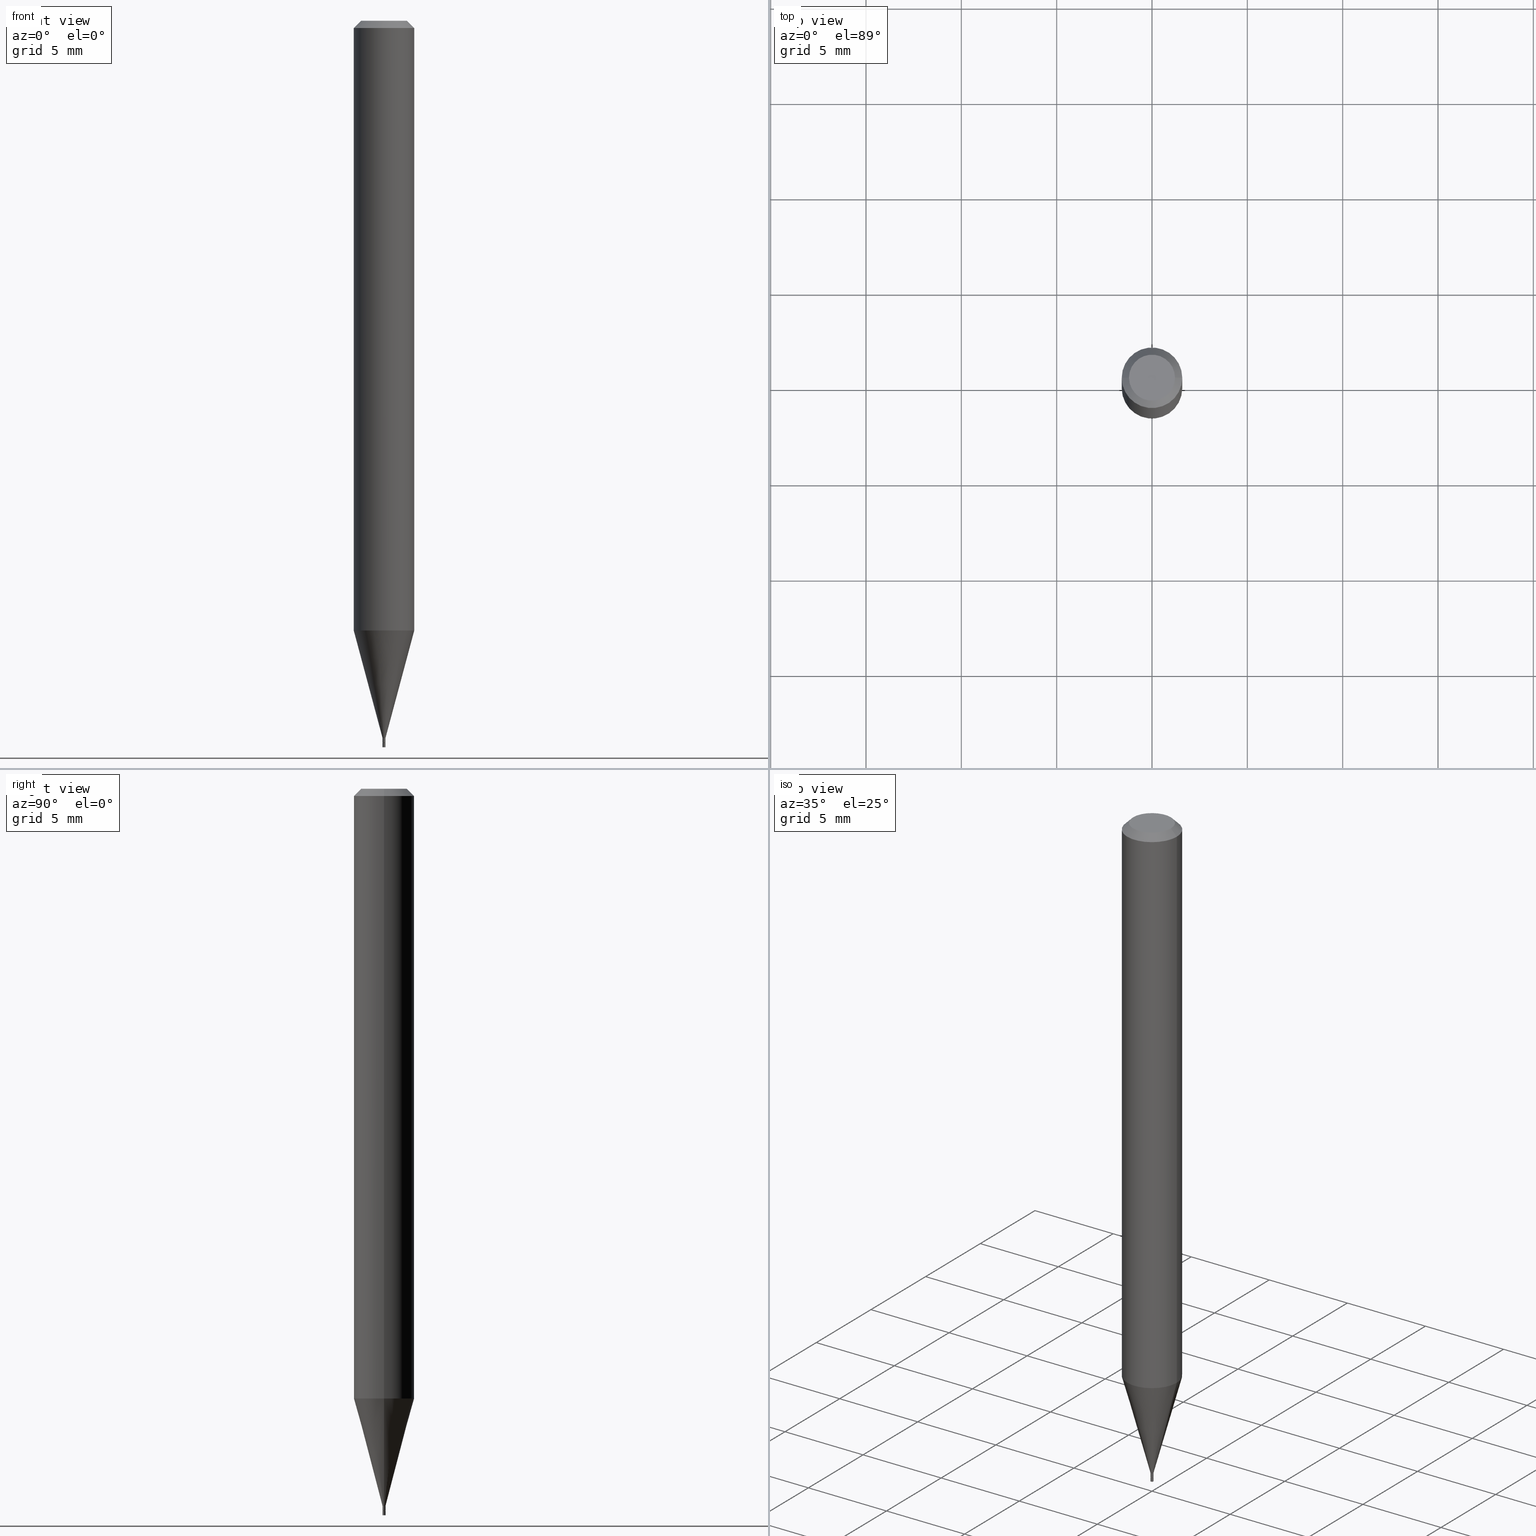
[diagram: canonical four-view strip — front | top / right | iso, engineering-drawing reading convention]
A machine part, canonical four-view strip (front | top / right | iso — engineering-drawing reading convention). The complete STEP part file that produces these views, byte-faithful:
ISO-10303-21;
HEADER;
FILE_DESCRIPTION (( 'STEP AP203' ),
    '1' );
FILE_NAME ('02202.STEP',
    '2024-03-18T19:54:11',
    ( '' ),
    ( '' ),
    'SwSTEP 2.0',
    'SolidWorks 2023',
    '' );
FILE_SCHEMA (( 'CONFIG_CONTROL_DESIGN' ));
ENDSEC;

DATA;
#1 = CONICAL_SURFACE ( 'NONE', #256, 0.002500000000000000052, 0.7853981633974723708 ) ;
#2 = ORIENTED_EDGE ( 'NONE', *, *, #419, .T. ) ;
#3 = DIRECTION ( 'NONE',  ( 1.000000000000000000, -6.982962677686138915E-15, 0.000000000000000000 ) ) ;
#4 = ORIENTED_EDGE ( 'NONE', *, *, #341, .T. ) ;
#5 = CARTESIAN_POINT ( 'NONE',  ( 3.621739301960187407E-29, -5.170883862826698675E-15, -1.481000000000000094 ) ) ;
#6 = ORIENTED_EDGE ( 'NONE', *, *, #294, .T. ) ;
#7 = AXIS2_PLACEMENT_3D ( 'NONE', #198, #458, #343 ) ;
#8 = CONICAL_SURFACE ( 'NONE', #402, 0.06250000000000000000, 0.7853981633973285970 ) ;
#9 = DIRECTION ( 'NONE',  ( 1.000000000000000000, -6.982962677686267499E-15, 5.108144071313017768E-29 ) ) ;
#10 = DIRECTION ( 'NONE',  ( -2.445468806185136597E-29, 3.491481338843145583E-15, 1.000000000000000000 ) ) ;
#11 = DIRECTION ( 'NONE',  ( -2.445468806185136597E-29, 3.491481338843145583E-15, 1.000000000000000000 ) ) ;
#12 = PLANE ( 'NONE',  #433 ) ;
#13 = CARTESIAN_POINT ( 'NONE',  ( 3.644971255618946712E-29, -5.204052935545708820E-15, -1.490500000000000158 ) ) ;
#14 = DIRECTION ( 'NONE',  ( -2.445468806185136597E-29, 3.491481338843145583E-15, 1.000000000000000000 ) ) ;
#15 = ADVANCED_FACE ( 'NONE', ( #465 ), #297, .T. ) ;
#16 = FACE_OUTER_BOUND ( 'NONE', #169, .T. ) ;
#17 = LINE ( 'NONE', #118, #275 ) ;
#18 = ORIENTED_EDGE ( 'NONE', *, *, #341, .F. ) ;
#19 = ORIENTED_EDGE ( 'NONE', *, *, #141, .F. ) ;
#20 = DIRECTION ( 'NONE',  ( 1.000000000000000000, -6.982962677686188613E-15, 0.000000000000000000 ) ) ;
#21 = AXIS2_PLACEMENT_3D ( 'NONE', #5, #252, #45 ) ;
#22 = AXIS2_PLACEMENT_3D ( 'NONE', #41, #11, #247 ) ;
#23 = DIRECTION ( 'NONE',  ( 1.000000000000000000, -6.982962677686266711E-15, 4.876176775795935232E-29 ) ) ;
#24 = DIRECTION ( 'NONE',  ( -0.7071067811865645591, 7.493145998870415691E-15, 0.7071067811865304753 ) ) ;
#25 = DIRECTION ( 'NONE',  ( 1.000000000000000000, -6.982962677686266711E-15, 4.876176775795935793E-29 ) ) ;
#26 = PERSON_AND_ORGANIZATION ( #405, #314 ) ;
#27 = APPROVAL ( #354, 'UNSPECIFIED' ) ;
#28 = DIRECTION ( 'NONE',  ( -2.445468806185136597E-29, 3.491481338843145583E-15, 1.000000000000000000 ) ) ;
#29 = APPLICATION_PROTOCOL_DEFINITION ( 'international standard', 'config_control_design', 1994, #63 ) ;
#30 = CONICAL_SURFACE ( 'NONE', #82, 0.06250000000000000000, 0.7853981633973285970 ) ;
#31 = COORDINATED_UNIVERSAL_TIME_OFFSET ( 5, 0, .BEHIND. ) ;
#32 = VERTEX_POINT ( 'NONE', #365 ) ;
#33 = EDGE_LOOP ( 'NONE', ( #58, #461, #106, #18 ) ) ;
#34 = CARTESIAN_POINT ( 'NONE',  ( 0.000000000000000000, 0.000000000000000000, 0.000000000000000000 ) ) ;
#35 = ORIENTED_EDGE ( 'NONE', *, *, #105, .F. ) ;
#36 = APPROVAL_ROLE ( '' ) ;
#37 = ORIENTED_EDGE ( 'NONE', *, *, #450, .F. ) ;
#38 = PRODUCT_RELATED_PRODUCT_CATEGORY ( 'detail', '', ( #204 ) ) ;
#39 = DIRECTION ( 'NONE',  ( -2.445468806185136597E-29, 3.491481338843145583E-15, 1.000000000000000000 ) ) ;
#40 = ORIENTED_EDGE ( 'NONE', *, *, #117, .F. ) ;
#41 = CARTESIAN_POINT ( 'NONE',  ( 3.621739301960187407E-29, -5.170883862826698675E-15, -1.481000000000000094 ) ) ;
#42 = AXIS2_PLACEMENT_3D ( 'NONE', #122, #451, #235 ) ;
#43 = CARTESIAN_POINT ( 'NONE',  ( 3.668203209277705088E-31, -5.237222008264718399E-17, -0.01499999999999999944 ) ) ;
#44 = CARTESIAN_POINT ( 'NONE',  ( 3.668203209277704895E-29, -5.237222008264718177E-15, -1.500000000000000222 ) ) ;
#45 = DIRECTION ( 'NONE',  ( 1.000000000000000000, -6.982962677686191769E-15, 0.000000000000000000 ) ) ;
#46 = DIRECTION ( 'NONE',  ( 0.7071067811865645591, -2.468850131082435343E-15, 0.7071067811865304753 ) ) ;
#47 = DIRECTION ( 'NONE',  ( 1.000000000000000000, -6.982962677686188613E-15, 0.000000000000000000 ) ) ;
#48 = DIRECTION ( 'NONE',  ( 1.000000000000000000, -6.982962677686265922E-15, 4.876176775795935793E-29 ) ) ;
#49 = DIRECTION ( 'NONE',  ( 1.000000000000000000, -6.982962677686266711E-15, 4.876176775795935793E-29 ) ) ;
#50 = EDGE_LOOP ( 'NONE', ( #35, #285, #210, #230 ) ) ;
#51 = DIRECTION ( 'NONE',  ( 1.000000000000000000, -6.982962677686266711E-15, 4.876176775795935232E-29 ) ) ;
#52 = CIRCLE ( 'NONE', #369, 0.06250000000000000000 ) ;
#53 = VECTOR ( 'NONE', #399, 39.37007874015748143 ) ;
#54 = APPLICATION_CONTEXT ( 'configuration controlled 3d designs of mechanical parts and assemblies' ) ;
#55 = COORDINATED_UNIVERSAL_TIME_OFFSET ( 5, 0, .BEHIND. ) ;
#56 = ORIENTED_EDGE ( 'NONE', *, *, #246, .F. ) ;
#57 = CARTESIAN_POINT ( 'NONE',  ( 0.000000000000000000, 0.000000000000000000, 0.000000000000000000 ) ) ;
#58 = ORIENTED_EDGE ( 'NONE', *, *, #289, .T. ) ;
#59 = CYLINDRICAL_SURFACE ( 'NONE', #337, 0.003000000000000000062 ) ;
#60 = DATE_AND_TIME ( #171, #91 ) ;
#61 = ORIENTED_EDGE ( 'NONE', *, *, #323, .F. ) ;
#62 = EDGE_LOOP ( 'NONE', ( #326, #164 ) ) ;
#63 = APPLICATION_CONTEXT ( 'configuration controlled 3d designs of mechanical parts and assemblies' ) ;
#64 = COORDINATED_UNIVERSAL_TIME_OFFSET ( 5, 0, .BEHIND. ) ;
#65 = VERTEX_POINT ( 'NONE', #120 ) ;
#66 = AXIS2_PLACEMENT_3D ( 'NONE', #333, #10, #398 ) ;
#67 = CIRCLE ( 'NONE', #93, 0.04749999999999999362 ) ;
#68 = CC_DESIGN_PERSON_AND_ORGANIZATION_ASSIGNMENT ( #455, #286, ( #338 ) ) ;
#69 = APPROVAL_PERSON_ORGANIZATION ( #205, #27, #36 ) ;
#70 = FACE_OUTER_BOUND ( 'NONE', #101, .T. ) ;
#71 = ORIENTED_EDGE ( 'NONE', *, *, #289, .F. ) ;
#72 = DESIGN_CONTEXT ( 'detailed design', #54, 'design' ) ;
#73 = EDGE_CURVE ( 'NONE', #108, #348, #449, .T. ) ;
#74 = FACE_OUTER_BOUND ( 'NONE', #237, .T. ) ;
#75 = DIRECTION ( 'NONE',  ( 1.000000000000000000, -6.982962677686266711E-15, 0.000000000000000000 ) ) ;
#76 = VECTOR ( 'NONE', #219, 39.37007874015748143 ) ;
#77 = FACE_OUTER_BOUND ( 'NONE', #178, .T. ) ;
#78 = PLANE ( 'NONE',  #312 ) ;
#79 = CARTESIAN_POINT ( 'NONE',  ( 3.646193990022038953E-29, -5.205798676215130324E-15, -1.491000000000000103 ) ) ;
#80 = PRODUCT_DEFINITION ( 'UNKNOWN', '', #338, #72 ) ;
#81 = ADVANCED_FACE ( 'NONE', ( #16 ), #12, .F. ) ;
#82 = AXIS2_PLACEMENT_3D ( 'NONE', #366, #444, #290 ) ;
#83 = DIRECTION ( 'NONE',  ( -0.2588190451025213501, 5.211531920934551042E-15, 0.9659258262890682012 ) ) ;
#84 = SECURITY_CLASSIFICATION ( '', '', #392 ) ;
#85 = VERTEX_POINT ( 'NONE', #194 ) ;
#86 = CARTESIAN_POINT ( 'NONE',  ( 3.576687321579069994E-29, -5.368277968210015545E-15, -1.500000000000000222 ) ) ;
#87 = ADVANCED_FACE ( 'NONE', ( #132 ), #257, .T. ) ;
#88 =( NAMED_UNIT ( * ) PLANE_ANGLE_UNIT ( ) SI_UNIT ( $, .RADIAN. ) );
#89 = ADVANCED_FACE ( 'NONE', ( #267 ), #425, .T. ) ;
#90 = ORIENTED_EDGE ( 'NONE', *, *, #450, .T. ) ;
#91 = LOCAL_TIME ( 15, 54, 11.00000000000000000, #31 ) ;
#92 = AXIS2_PLACEMENT_3D ( 'NONE', #411, #349, #51 ) ;
#93 = AXIS2_PLACEMENT_3D ( 'NONE', #181, #39, #9 ) ;
#94 = ORIENTED_EDGE ( 'NONE', *, *, #302, .F. ) ;
#95 = EDGE_CURVE ( 'NONE', #420, #244, #165, .T. ) ;
#96 = CALENDAR_DATE ( 2024, 18, 3 ) ;
#97 = ORIENTED_EDGE ( 'NONE', *, *, #383, .F. ) ;
#98 = CARTESIAN_POINT ( 'NONE',  ( -8.783475466943041190E-44, 1.254047510459085029E-29, 3.591734821858152800E-15 ) ) ;
#99 = SHAPE_DEFINITION_REPRESENTATION ( #429, #331 ) ;
#100 = ADVANCED_FACE ( 'NONE', ( #422 ), #59, .T. ) ;
#101 = EDGE_LOOP ( 'NONE', ( #356, #61, #414, #357 ) ) ;
#102 = ORIENTED_EDGE ( 'NONE', *, *, #268, .F. ) ;
#103 = DATE_TIME_ROLE ( 'creation_date' ) ;
#104 = ORIENTED_EDGE ( 'NONE', *, *, #393, .F. ) ;
#105 = EDGE_CURVE ( 'NONE', #436, #322, #362, .T. ) ;
#106 = ORIENTED_EDGE ( 'NONE', *, *, #197, .F. ) ;
#107 = DIRECTION ( 'NONE',  ( 1.000000000000000000, -6.982962677686332186E-15, 0.000000000000000000 ) ) ;
#108 = VERTEX_POINT ( 'NONE', #462 ) ;
#109 = AXIS2_PLACEMENT_3D ( 'NONE', #238, #454, #270 ) ;
#110 = LOCAL_TIME ( 15, 54, 11.00000000000000000, #64 ) ;
#111 = DIRECTION ( 'NONE',  ( -2.445468806185136597E-29, 3.491481338843145583E-15, 1.000000000000000000 ) ) ;
#112 = DIRECTION ( 'NONE',  ( 1.000000000000000000, -6.982962677686138915E-15, 0.000000000000000000 ) ) ;
#113 = EDGE_CURVE ( 'NONE', #276, #287, #415, .T. ) ;
#114 = DIRECTION ( 'NONE',  ( -2.445468806185136597E-29, 3.491481338843145583E-15, 1.000000000000000000 ) ) ;
#115 = CIRCLE ( 'NONE', #379, 0.003000000000000000062 ) ;
#116 = CARTESIAN_POINT ( 'NONE',  ( -0.06250000000000000000, -1.779884855534934425E-15, -0.01499999999999999944 ) ) ;
#117 = EDGE_CURVE ( 'NONE', #85, #32, #382, .T. ) ;
#118 = CARTESIAN_POINT ( 'NONE',  ( -0.003000000000000000062, 2.131628207280300602E-17, -1.475680527076471750E-31 ) ) ;
#119 = CC_DESIGN_PERSON_AND_ORGANIZATION_ASSIGNMENT ( #460, #466, ( #84 ) ) ;
#120 = CARTESIAN_POINT ( 'NONE',  ( 0.002999999999999921566, -5.191832750859756717E-15, -1.481000000000000094 ) ) ;
#121 = CC_DESIGN_APPROVAL ( #136, ( #84 ) ) ;
#122 = CARTESIAN_POINT ( 'NONE',  ( 3.668203209277705088E-31, -5.237222008264718399E-17, -0.01499999999999999944 ) ) ;
#123 = CARTESIAN_POINT ( 'NONE',  ( 3.078705778896227940E-29, -4.395575910687346608E-15, -1.258942976949652293 ) ) ;
#124 = DIRECTION ( 'NONE',  ( -2.445468806185136597E-29, 3.491481338843145583E-15, 1.000000000000000000 ) ) ;
#125 = ORIENTED_EDGE ( 'NONE', *, *, #367, .F. ) ;
#126 = FACE_OUTER_BOUND ( 'NONE', #269, .T. ) ;
#127 = AXIS2_PLACEMENT_3D ( 'NONE', #139, #432, #220 ) ;
#128 = VECTOR ( 'NONE', #83, 39.37007874015747433 ) ;
#129 = ADVANCED_FACE ( 'NONE', ( #377 ), #206, .F. ) ;
#130 = AXIS2_PLACEMENT_3D ( 'NONE', #57, #280, #242 ) ;
#131 = DIRECTION ( 'NONE',  ( -2.445468806185136597E-29, 3.491481338843145583E-15, 1.000000000000000000 ) ) ;
#132 = FACE_OUTER_BOUND ( 'NONE', #435, .T. ) ;
#133 = CALENDAR_DATE ( 2024, 18, 3 ) ;
#134 = ORIENTED_EDGE ( 'NONE', *, *, #407, .F. ) ;
#135 = DIRECTION ( 'NONE',  ( 1.000000000000000000, -6.982962677686262766E-15, 0.000000000000000000 ) ) ;
#136 = APPROVAL ( #236, 'UNSPECIFIED' ) ;
#137 = APPROVAL_DATE_TIME ( #175, #27 ) ;
#138 = ORIENTED_EDGE ( 'NONE', *, *, #117, .T. ) ;
#139 = CARTESIAN_POINT ( 'NONE',  ( 3.621739301960187407E-29, -5.170883862826698675E-15, -1.481000000000000094 ) ) ;
#140 = APPROVAL_ROLE ( '' ) ;
#141 = EDGE_CURVE ( 'NONE', #287, #209, #263, .T. ) ;
#142 = EDGE_LOOP ( 'NONE', ( #180, #196, #71, #56 ) ) ;
#143 = CARTESIAN_POINT ( 'NONE',  ( -0.06250000000000000000, -3.951486700837283992E-15, -1.258942976949652293 ) ) ;
#144 = ORIENTED_EDGE ( 'NONE', *, *, #246, .T. ) ;
#145 = DIRECTION ( 'NONE',  ( 2.438088387897960049E-29, -3.491481338843145188E-15, -1.000000000000000000 ) ) ;
#146 = VECTOR ( 'NONE', #24, 39.37007874015748143 ) ;
#147 = CC_DESIGN_APPROVAL ( #303, ( #338 ) ) ;
#148 = CARTESIAN_POINT ( 'NONE',  ( 3.668203209277705088E-31, -5.237222008264718399E-17, -0.01499999999999999944 ) ) ;
#149 = CARTESIAN_POINT ( 'NONE',  ( 0.06250000000000000000, -4.888073874380388472E-16, -0.01499999999999999944 ) ) ;
#150 = CARTESIAN_POINT ( 'NONE',  ( -0.04749999999999999362, 3.578768372314273615E-16, 3.591734821858150433E-15 ) ) ;
#151 = CARTESIAN_POINT ( 'NONE',  ( 0.000000000000000000, 0.000000000000000000, 0.000000000000000000 ) ) ;
#152 = FACE_OUTER_BOUND ( 'NONE', #328, .T. ) ;
#153 = CARTESIAN_POINT ( 'NONE',  ( -0.003000000000000000062, -5.200194060167121620E-15, -1.500000000000000222 ) ) ;
#154 = MANIFOLD_SOLID_BREP ( 'Body-Move/Copy2[1]', #182 ) ;
#155 = ORIENTED_EDGE ( 'NONE', *, *, #383, .T. ) ;
#156 = MANIFOLD_SOLID_BREP ( 'Body-Move/Copy2[2]', #298 ) ;
#157 = CONICAL_SURFACE ( 'NONE', #409, 0.002500000000000000052, 0.7853981633974723708 ) ;
#158 = CARTESIAN_POINT ( 'NONE',  ( 0.04749999999999999362, -4.035134999187516007E-16, 3.591734821858155166E-15 ) ) ;
#159 = CIRCLE ( 'NONE', #218, 0.003000000000000000062 ) ;
#160 = FACE_OUTER_BOUND ( 'NONE', #62, .T. ) ;
#161 = DIRECTION ( 'NONE',  ( 1.000000000000000000, -6.982962677686266711E-15, 4.876176775795935793E-29 ) ) ;
#162 = DIRECTION ( 'NONE',  ( 1.000000000000000000, -6.982962677686267499E-15, 5.108144071313017768E-29 ) ) ;
#163 = APPLICATION_PROTOCOL_DEFINITION ( 'international standard', 'config_control_design', 1994, #54 ) ;
#164 = ORIENTED_EDGE ( 'NONE', *, *, #232, .F. ) ;
#165 = LINE ( 'NONE', #316, #439 ) ;
#166 = MECHANICAL_CONTEXT ( 'NONE', #63, 'mechanical' ) ;
#167 = CIRCLE ( 'NONE', #22, 0.002999999999999921566 ) ;
#168 = AXIS2_PLACEMENT_3D ( 'NONE', #79, #301, #231 ) ;
#169 = EDGE_LOOP ( 'NONE', ( #353, #104 ) ) ;
#170 = CARTESIAN_POINT ( 'NONE',  ( 0.000000000000000000, 0.000000000000000000, 0.000000000000000000 ) ) ;
#171 = CALENDAR_DATE ( 2024, 18, 3 ) ;
#172 = CARTESIAN_POINT ( 'NONE',  ( -0.06250000000000000000, 4.440892098500626162E-16, -3.074334431409316114E-30 ) ) ;
#173 = PERSON_AND_ORGANIZATION_ROLE ( 'design_owner' ) ;
#174 = EDGE_CURVE ( 'NONE', #276, #176, #273, .T. ) ;
#175 = DATE_AND_TIME ( #320, #110 ) ;
#176 = VERTEX_POINT ( 'NONE', #279 ) ;
#177 = CIRCLE ( 'NONE', #445, 0.003000000000000000062 ) ;
#178 = EDGE_LOOP ( 'NONE', ( #278, #438, #144, #241 ) ) ;
#179 = FACE_OUTER_BOUND ( 'NONE', #50, .T. ) ;
#180 = ORIENTED_EDGE ( 'NONE', *, *, #386, .T. ) ;
#181 = CARTESIAN_POINT ( 'NONE',  ( -8.783475466943041190E-44, 1.254047510459085029E-29, 3.591734821858152800E-15 ) ) ;
#182 = CLOSED_SHELL ( 'NONE', ( #87, #81, #100, #129 ) ) ;
#183 = CARTESIAN_POINT ( 'NONE',  ( 3.646193990022038953E-29, -5.205798676215130324E-15, -1.491000000000000103 ) ) ;
#184 = DIRECTION ( 'NONE',  ( -2.445468806185136597E-29, 3.491481338843145583E-15, 1.000000000000000000 ) ) ;
#185 = ADVANCED_FACE ( 'NONE', ( #160 ), #428, .F. ) ;
#186 = ADVANCED_FACE ( 'NONE', ( #126 ), #157, .T. ) ;
#187 = CC_DESIGN_SECURITY_CLASSIFICATION ( #84, ( #338 ) ) ;
#188 = LINE ( 'NONE', #262, #146 ) ;
#189 = CIRCLE ( 'NONE', #249, 0.002999999999999922867 ) ;
#190 = VECTOR ( 'NONE', #195, 39.37007874015748143 ) ;
#191 = CARTESIAN_POINT ( 'NONE',  ( 3.668203209277704895E-29, -5.237222008264718177E-15, -1.500000000000000222 ) ) ;
#192 = DIRECTION ( 'NONE',  ( -2.445468806185136597E-29, 3.491481338843145583E-15, 1.000000000000000000 ) ) ;
#193 = EDGE_LOOP ( 'NONE', ( #90, #6 ) ) ;
#194 = CARTESIAN_POINT ( 'NONE',  ( 0.003000000000000000062, -5.258170896297777797E-15, -1.500000000000000222 ) ) ;
#195 = DIRECTION ( 'NONE',  ( -0.7071067811864628627, 2.468850131081369986E-15, -0.7071067811866321717 ) ) ;
#196 = ORIENTED_EDGE ( 'NONE', *, *, #372, .T. ) ;
#197 = EDGE_CURVE ( 'NONE', #209, #287, #248, .T. ) ;
#198 = CARTESIAN_POINT ( 'NONE',  ( 2.094888803309526104E-17, 0.002999999999994793724, -1.491000000000000103 ) ) ;
#199 =( CONVERSION_BASED_UNIT ( 'INCH', #413 ) LENGTH_UNIT ( ) NAMED_UNIT ( #380 ) );
#200 = ORIENTED_EDGE ( 'NONE', *, *, #105, .T. ) ;
#201 = ADVANCED_FACE ( 'NONE', ( #288 ), #212, .T. ) ;
#202 = DATE_AND_TIME ( #321, #292 ) ;
#203 = CC_DESIGN_PERSON_AND_ORGANIZATION_ASSIGNMENT ( #207, #239, ( #338 ) ) ;
#204 = PRODUCT ( '02202', '02202', '', ( #166 ) ) ;
#205 = PERSON_AND_ORGANIZATION ( #405, #314 ) ;
#206 = PLANE ( 'NONE',  #7 ) ;
#207 = PERSON_AND_ORGANIZATION ( #405, #314 ) ;
#208 = ADVANCED_FACE ( 'NONE', ( #400 ), #78, .F. ) ;
#209 = VERTEX_POINT ( 'NONE', #149 ) ;
#210 = ORIENTED_EDGE ( 'NONE', *, *, #197, .T. ) ;
#211 = AXIS2_PLACEMENT_3D ( 'NONE', #43, #443, #75 ) ;
#212 = CYLINDRICAL_SURFACE ( 'NONE', #66, 0.06250000000000000000 ) ;
#213 = ORIENTED_EDGE ( 'NONE', *, *, #268, .T. ) ;
#214 = CC_DESIGN_DATE_AND_TIME_ASSIGNMENT ( #277, #283, ( #84 ) ) ;
#215 = DIRECTION ( 'NONE',  ( -2.445468806185136597E-29, 3.491481338843145583E-15, 1.000000000000000000 ) ) ;
#216 = CARTESIAN_POINT ( 'NONE',  ( 3.646193990022038953E-29, -5.205798676215130324E-15, -1.491000000000000103 ) ) ;
#217 = CIRCLE ( 'NONE', #223, 0.002500000000000000052 ) ;
#218 = AXIS2_PLACEMENT_3D ( 'NONE', #191, #336, #408 ) ;
#219 = DIRECTION ( 'NONE',  ( -2.445468806185136877E-29, 3.491481338843145188E-15, 1.000000000000000000 ) ) ;
#220 = DIRECTION ( 'NONE',  ( 1.000000000000000000, -6.982962677686191769E-15, 0.000000000000000000 ) ) ;
#221 = DIRECTION ( 'NONE',  ( -1.000000000000000000, 6.982962677686265922E-15, -4.876176775795935793E-29 ) ) ;
#222 = DIRECTION ( 'NONE',  ( 0.7071067811864628627, -7.319954787622970478E-15, -0.7071067811866321717 ) ) ;
#223 = AXIS2_PLACEMENT_3D ( 'NONE', #216, #114, #112 ) ;
#224 = CARTESIAN_POINT ( 'NONE',  ( 3.646193990022038953E-29, -5.205798676215130324E-15, -1.491000000000000103 ) ) ;
#225 = CIRCLE ( 'NONE', #168, 0.003000000000000000062 ) ;
#226 = FACE_OUTER_BOUND ( 'NONE', #427, .T. ) ;
#227 = VERTEX_POINT ( 'NONE', #295 ) ;
#228 = DIRECTION ( 'NONE',  ( -2.445468806185136877E-29, 3.491481338843145188E-15, 1.000000000000000000 ) ) ;
#229 = CARTESIAN_POINT ( 'NONE',  ( 3.621739301960187407E-29, -5.170883862826698675E-15, -1.481000000000000094 ) ) ;
#230 = ORIENTED_EDGE ( 'NONE', *, *, #463, .F. ) ;
#231 = DIRECTION ( 'NONE',  ( 1.000000000000000000, -6.982962677686332186E-15, 0.000000000000000000 ) ) ;
#232 = EDGE_CURVE ( 'NONE', #348, #108, #217, .T. ) ;
#233 = CC_DESIGN_DATE_AND_TIME_ASSIGNMENT ( #350, #103, ( #80 ) ) ;
#234 = PERSON_AND_ORGANIZATION ( #405, #314 ) ;
#235 = DIRECTION ( 'NONE',  ( 1.000000000000000000, -6.982962677686266711E-15, 0.000000000000000000 ) ) ;
#236 = APPROVAL_STATUS ( 'not_yet_approved' ) ;
#237 = EDGE_LOOP ( 'NONE', ( #282, #155, #134, #453 ) ) ;
#238 = CARTESIAN_POINT ( 'NONE',  ( 3.646193990022038953E-29, -5.205798676215130324E-15, -1.491000000000000103 ) ) ;
#239 = PERSON_AND_ORGANIZATION_ROLE ( 'design_supplier' ) ;
#240 = AXIS2_PLACEMENT_3D ( 'NONE', #170, #345, #25 ) ;
#241 = ORIENTED_EDGE ( 'NONE', *, *, #174, .F. ) ;
#242 = DIRECTION ( 'NONE',  ( 1.000000000000000000, 0.000000000000000000, 0.000000000000000000 ) ) ;
#243 = CC_DESIGN_PERSON_AND_ORGANIZATION_ASSIGNMENT ( #430, #384, ( #80 ) ) ;
#244 = VERTEX_POINT ( 'NONE', #255 ) ;
#245 = ORIENTED_EDGE ( 'NONE', *, *, #367, .T. ) ;
#246 = EDGE_CURVE ( 'NONE', #65, #176, #254, .T. ) ;
#247 = DIRECTION ( 'NONE',  ( 1.000000000000000000, -6.982962677686191769E-15, 0.000000000000000000 ) ) ;
#248 = CIRCLE ( 'NONE', #211, 0.06250000000000000000 ) ;
#249 = AXIS2_PLACEMENT_3D ( 'NONE', #13, #452, #47 ) ;
#250 =( GEOMETRIC_REPRESENTATION_CONTEXT ( 3 ) GLOBAL_UNCERTAINTY_ASSIGNED_CONTEXT ( ( #332 ) ) GLOBAL_UNIT_ASSIGNED_CONTEXT ( ( #199, #88, #306 ) ) REPRESENTATION_CONTEXT ( 'NONE', 'WORKASPACE' ) );
#251 = ADVANCED_FACE ( 'NONE', ( #179 ), #30, .T. ) ;
#252 = DIRECTION ( 'NONE',  ( -2.445468806185136597E-29, 3.491481338843145583E-15, 1.000000000000000000 ) ) ;
#253 = ADVANCED_FACE ( 'NONE', ( #77 ), #330, .T. ) ;
#254 = LINE ( 'NONE', #327, #291 ) ;
#255 = CARTESIAN_POINT ( 'NONE',  ( -0.002999999999999921566, -4.550527140795590610E-15, -1.481000000000000094 ) ) ;
#256 = AXIS2_PLACEMENT_3D ( 'NONE', #335, #215, #3 ) ;
#257 = CYLINDRICAL_SURFACE ( 'NONE', #92, 0.003000000000000000062 ) ;
#258 = DIRECTION ( 'NONE',  ( 1.000000000000000000, -6.982962677686332186E-15, 0.000000000000000000 ) ) ;
#259 = DIRECTION ( 'NONE',  ( -2.438088387897960049E-29, 3.491481338843145188E-15, 1.000000000000000000 ) ) ;
#260 = DIRECTION ( 'NONE',  ( -2.445468806185136877E-29, 3.491481338843145188E-15, 1.000000000000000000 ) ) ;
#261 = APPROVAL_PERSON_ORGANIZATION ( #426, #136, #389 ) ;
#262 = CARTESIAN_POINT ( 'NONE',  ( -0.002500000000000000052, -5.188035107821127409E-15, -1.491000000000000103 ) ) ;
#263 = CIRCLE ( 'NONE', #42, 0.06250000000000000000 ) ;
#264 = AXIS2_PLACEMENT_3D ( 'NONE', #344, #14, #20 ) ;
#265 = LINE ( 'NONE', #406, #128 ) ;
#266 = ORIENTED_EDGE ( 'NONE', *, *, #355, .T. ) ;
#267 = FACE_OUTER_BOUND ( 'NONE', #464, .T. ) ;
#268 = EDGE_CURVE ( 'NONE', #319, #65, #441, .T. ) ;
#269 = EDGE_LOOP ( 'NONE', ( #97, #390, #266, #125 ) ) ;
#270 = DIRECTION ( 'NONE',  ( 1.000000000000000000, -6.982962677686265922E-15, 4.876176775795935793E-29 ) ) ;
#271 = ADVANCED_FACE ( 'NONE', ( #74 ), #1, .T. ) ;
#272 = CARTESIAN_POINT ( 'NONE',  ( 3.646193990022038953E-29, -5.205798676215130324E-15, -1.491000000000000103 ) ) ;
#273 = CIRCLE ( 'NONE', #457, 0.06250000000000000000 ) ;
#274 = CIRCLE ( 'NONE', #363, 0.002999999999999921566 ) ;
#275 = VECTOR ( 'NONE', #260, 39.37007874015748143 ) ;
#276 = VERTEX_POINT ( 'NONE', #143 ) ;
#277 = DATE_AND_TIME ( #133, #351 ) ;
#278 = ORIENTED_EDGE ( 'NONE', *, *, #372, .F. ) ;
#279 = CARTESIAN_POINT ( 'NONE',  ( 0.06250000000000000000, -4.832011078042738278E-15, -1.258942976949652293 ) ) ;
#280 = DIRECTION ( 'NONE',  ( 0.000000000000000000, 0.000000000000000000, 1.000000000000000000 ) ) ;
#281 = ORIENTED_EDGE ( 'NONE', *, *, #300, .T. ) ;
#282 = ORIENTED_EDGE ( 'NONE', *, *, #73, .T. ) ;
#283 = DATE_TIME_ROLE ( 'classification_date' ) ;
#284 = VECTOR ( 'NONE', #228, 39.37007874015748143 ) ;
#285 = ORIENTED_EDGE ( 'NONE', *, *, #456, .T. ) ;
#286 = PERSON_AND_ORGANIZATION_ROLE ( 'creator' ) ;
#287 = VERTEX_POINT ( 'NONE', #116 ) ;
#288 = FACE_OUTER_BOUND ( 'NONE', #33, .T. ) ;
#289 = EDGE_CURVE ( 'NONE', #176, #276, #52, .T. ) ;
#290 = DIRECTION ( 'NONE',  ( -1.000000000000000000, 6.982962677686266711E-15, 0.000000000000000000 ) ) ;
#291 = VECTOR ( 'NONE', #329, 39.37007874015747433 ) ;
#292 = LOCAL_TIME ( 15, 54, 11.00000000000000000, #313 ) ;
#293 = DIRECTION ( 'NONE',  ( 2.445468806185136597E-29, -3.491481338843145583E-15, -1.000000000000000000 ) ) ;
#294 = EDGE_CURVE ( 'NONE', #227, #32, #115, .T. ) ;
#295 = CARTESIAN_POINT ( 'NONE',  ( -0.003000000000000000062, -5.200194060167121620E-15, -1.491000000000000103 ) ) ;
#296 = CARTESIAN_POINT ( 'NONE',  ( 3.316907271900976096E-16, 0.04749999999999999362, 1.630022047334026855E-15 ) ) ;
#297 = CONICAL_SURFACE ( 'NONE', #127, 0.002999999999999921566, 0.2617993877991500740 ) ;
#298 = CLOSED_SHELL ( 'NONE', ( #89, #271, #251, #201, #15, #253, #404, #324, #208, #185, #186, #416 ) ) ;
#299 = DIRECTION ( 'NONE',  ( -2.445468806185136597E-29, 3.491481338843145583E-15, 1.000000000000000000 ) ) ;
#300 = EDGE_CURVE ( 'NONE', #85, #387, #177, .T. ) ;
#301 = DIRECTION ( 'NONE',  ( -2.445468806185136597E-29, 3.491481338843145583E-15, 1.000000000000000000 ) ) ;
#302 = EDGE_CURVE ( 'NONE', #244, #65, #167, .T. ) ;
#303 = APPROVAL ( #385, 'UNSPECIFIED' ) ;
#304 = CARTESIAN_POINT ( 'NONE',  ( -0.06250000000000000000, 3.840629472727444916E-16, -0.01499999999999999944 ) ) ;
#305 = ORIENTED_EDGE ( 'NONE', *, *, #113, .F. ) ;
#306 =( NAMED_UNIT ( * ) SI_UNIT ( $, .STERADIAN. ) SOLID_ANGLE_UNIT ( ) );
#307 = DIRECTION ( 'NONE',  ( -2.445468806185136877E-29, 3.491481338843145188E-15, 1.000000000000000000 ) ) ;
#308 = CARTESIAN_POINT ( 'NONE',  ( 0.06250000000000000000, -4.811533449433679005E-16, -0.01499999999999999944 ) ) ;
#309 = DIRECTION ( 'NONE',  ( -2.445468806185136597E-29, 3.491481338843145583E-15, 1.000000000000000000 ) ) ;
#310 = COORDINATED_UNIVERSAL_TIME_OFFSET ( 5, 0, .BEHIND. ) ;
#311 = CARTESIAN_POINT ( 'NONE',  ( 0.003000000000000000062, -2.094888803305880087E-17, 1.462853032738780615E-31 ) ) ;
#312 = AXIS2_PLACEMENT_3D ( 'NONE', #296, #145, #221 ) ;
#313 = COORDINATED_UNIVERSAL_TIME_OFFSET ( 5, 0, .BEHIND. ) ;
#314 = ORGANIZATION ( 'UNSPECIFIED', 'UNSPECIFIED', '' ) ;
#315 = ORIENTED_EDGE ( 'NONE', *, *, #393, .T. ) ;
#316 = CARTESIAN_POINT ( 'NONE',  ( -0.002999999999999922434, 2.131628207280245443E-17, -1.475680527076433653E-31 ) ) ;
#317 = APPROVAL_DATE_TIME ( #60, #136 ) ;
#318 = ORIENTED_EDGE ( 'NONE', *, *, #323, .T. ) ;
#319 = VERTEX_POINT ( 'NONE', #358 ) ;
#320 = CALENDAR_DATE ( 2024, 18, 3 ) ;
#321 = CALENDAR_DATE ( 2024, 18, 3 ) ;
#322 = VERTEX_POINT ( 'NONE', #150 ) ;
#323 = EDGE_CURVE ( 'NONE', #322, #436, #67, .T. ) ;
#324 = ADVANCED_FACE ( 'NONE', ( #70 ), #8, .T. ) ;
#325 = CARTESIAN_POINT ( 'NONE',  ( 0.002999999999999922434, -2.094888803305825853E-17, 1.462853032738742955E-31 ) ) ;
#326 = ORIENTED_EDGE ( 'NONE', *, *, #73, .F. ) ;
#327 = CARTESIAN_POINT ( 'NONE',  ( 0.002999999999999921566, -5.191832750859756717E-15, -1.481000000000000094 ) ) ;
#328 = EDGE_LOOP ( 'NONE', ( #410, #245, #213, #94 ) ) ;
#329 = DIRECTION ( 'NONE',  ( 0.2588190451025213501, 1.565188264969621968E-15, 0.9659258262890682012 ) ) ;
#330 = CONICAL_SURFACE ( 'NONE', #21, 0.002999999999999921566, 0.2617993877991500740 ) ;
#331 = ADVANCED_BREP_SHAPE_REPRESENTATION ( '02202', ( #154, #156, #130 ), #250 ) ;
#332 = UNCERTAINTY_MEASURE_WITH_UNIT (LENGTH_MEASURE( 1.000000000000000082E-05 ), #199, 'distance_accuracy_value', 'NONE');
#333 = CARTESIAN_POINT ( 'NONE',  ( 0.000000000000000000, 0.000000000000000000, 0.000000000000000000 ) ) ;
#334 = CC_DESIGN_PERSON_AND_ORGANIZATION_ASSIGNMENT ( #234, #173, ( #204 ) ) ;
#335 = CARTESIAN_POINT ( 'NONE',  ( 3.646193990022038953E-29, -5.205798676215130324E-15, -1.491000000000000103 ) ) ;
#336 = DIRECTION ( 'NONE',  ( -2.445468806185136597E-29, 3.491481338843145583E-15, 1.000000000000000000 ) ) ;
#337 = AXIS2_PLACEMENT_3D ( 'NONE', #34, #418, #23 ) ;
#338 = PRODUCT_DEFINITION_FORMATION_WITH_SPECIFIED_SOURCE ( 'ANY', '', #204, .NOT_KNOWN. ) ;
#339 = CYLINDRICAL_SURFACE ( 'NONE', #440, 0.002999999999999922434 ) ;
#340 = LINE ( 'NONE', #308, #424 ) ;
#341 = EDGE_CURVE ( 'NONE', #176, #209, #396, .T. ) ;
#342 = EDGE_LOOP ( 'NONE', ( #417, #315, #138, #397 ) ) ;
#343 = DIRECTION ( 'NONE',  ( -1.000000000000000000, 6.982962677686265922E-15, -4.876176775795935793E-29 ) ) ;
#344 = CARTESIAN_POINT ( 'NONE',  ( 3.644971255618946712E-29, -5.204052935545708820E-15, -1.490500000000000158 ) ) ;
#345 = DIRECTION ( 'NONE',  ( -2.445468806185136597E-29, 3.491481338843145583E-15, 1.000000000000000000 ) ) ;
#346 = DIRECTION ( 'NONE',  ( -2.445468806185136877E-29, 3.491481338843145188E-15, 1.000000000000000000 ) ) ;
#347 = APPROVAL_DATE_TIME ( #202, #303 ) ;
#348 = VERTEX_POINT ( 'NONE', #361 ) ;
#349 = DIRECTION ( 'NONE',  ( -2.445468806185136597E-29, 3.491481338843145583E-15, 1.000000000000000000 ) ) ;
#350 = DATE_AND_TIME ( #96, #412 ) ;
#351 = LOCAL_TIME ( 15, 54, 11.00000000000000000, #310 ) ;
#352 = ORIENTED_EDGE ( 'NONE', *, *, #407, .T. ) ;
#353 = ORIENTED_EDGE ( 'NONE', *, *, #300, .F. ) ;
#354 = APPROVAL_STATUS ( 'not_yet_approved' ) ;
#355 = EDGE_CURVE ( 'NONE', #108, #319, #447, .T. ) ;
#356 = ORIENTED_EDGE ( 'NONE', *, *, #456, .F. ) ;
#357 = ORIENTED_EDGE ( 'NONE', *, *, #141, .T. ) ;
#358 = CARTESIAN_POINT ( 'NONE',  ( 0.002999999999999922867, -5.225001823578766863E-15, -1.490500000000000158 ) ) ;
#359 = ORIENTED_EDGE ( 'NONE', *, *, #174, .T. ) ;
#360 = CARTESIAN_POINT ( 'NONE',  ( 3.078705778896227940E-29, -4.395575910687346608E-15, -1.258942976949652293 ) ) ;
#361 = CARTESIAN_POINT ( 'NONE',  ( -0.002500000000000000052, -5.185385880647017785E-15, -1.491000000000000103 ) ) ;
#362 = CIRCLE ( 'NONE', #421, 0.04749999999999999362 ) ;
#363 = AXIS2_PLACEMENT_3D ( 'NONE', #229, #299, #446 ) ;
#364 = DIRECTION ( 'NONE',  ( -2.445468806185136597E-29, 3.491481338843145583E-15, 1.000000000000000000 ) ) ;
#365 = CARTESIAN_POINT ( 'NONE',  ( 0.003000000000000000062, -5.226747564248189155E-15, -1.491000000000000103 ) ) ;
#366 = CARTESIAN_POINT ( 'NONE',  ( 3.668203209277705088E-31, -5.237222008264718399E-17, -0.01499999999999999944 ) ) ;
#367 = EDGE_CURVE ( 'NONE', #420, #319, #423, .T. ) ;
#368 = CARTESIAN_POINT ( 'NONE',  ( 0.000000000000000000, 0.000000000000000000, 0.000000000000000000 ) ) ;
#369 = AXIS2_PLACEMENT_3D ( 'NONE', #360, #111, #437 ) ;
#370 = CC_DESIGN_APPROVAL ( #27, ( #80 ) ) ;
#371 = DIRECTION ( 'NONE',  ( -2.445468806185136597E-29, 3.491481338843145583E-15, 1.000000000000000000 ) ) ;
#372 = EDGE_CURVE ( 'NONE', #244, #276, #265, .T. ) ;
#373 = CYLINDRICAL_SURFACE ( 'NONE', #459, 0.06250000000000000000 ) ;
#374 = DIRECTION ( 'NONE',  ( 1.000000000000000000, -6.982962677686138915E-15, 0.000000000000000000 ) ) ;
#375 = CARTESIAN_POINT ( 'NONE',  ( 0.002500000000000000052, -5.223256082909346148E-15, -1.491000000000000103 ) ) ;
#376 = ORIENTED_EDGE ( 'NONE', *, *, #386, .F. ) ;
#377 = FACE_OUTER_BOUND ( 'NONE', #193, .T. ) ;
#378 = LINE ( 'NONE', #304, #190 ) ;
#379 = AXIS2_PLACEMENT_3D ( 'NONE', #183, #364, #258 ) ;
#380 = DIMENSIONAL_EXPONENTS ( 1.000000000000000000, 0.000000000000000000, 0.000000000000000000, 0.000000000000000000, 0.000000000000000000, 0.000000000000000000, 0.000000000000000000 ) ;
#381 = CARTESIAN_POINT ( 'NONE',  ( -0.002999999999999922867, -5.182736653472906584E-15, -1.490500000000000158 ) ) ;
#382 = LINE ( 'NONE', #311, #401 ) ;
#383 = EDGE_CURVE ( 'NONE', #348, #420, #188, .T. ) ;
#384 = PERSON_AND_ORGANIZATION_ROLE ( 'creator' ) ;
#385 = APPROVAL_STATUS ( 'not_yet_approved' ) ;
#386 = EDGE_CURVE ( 'NONE', #65, #244, #274, .T. ) ;
#387 = VERTEX_POINT ( 'NONE', #153 ) ;
#388 = DIRECTION ( 'NONE',  ( 1.000000000000000000, -6.982962677686138915E-15, 0.000000000000000000 ) ) ;
#389 = APPROVAL_ROLE ( '' ) ;
#390 = ORIENTED_EDGE ( 'NONE', *, *, #232, .T. ) ;
#391 = ORIENTED_EDGE ( 'NONE', *, *, #95, .T. ) ;
#392 = SECURITY_CLASSIFICATION_LEVEL ( 'unclassified' ) ;
#393 = EDGE_CURVE ( 'NONE', #387, #85, #159, .T. ) ;
#394 = AXIS2_PLACEMENT_3D ( 'NONE', #224, #371, #374 ) ;
#395 = APPROVAL_PERSON_ORGANIZATION ( #26, #303, #140 ) ;
#396 = LINE ( 'NONE', #442, #53 ) ;
#397 = ORIENTED_EDGE ( 'NONE', *, *, #294, .F. ) ;
#398 = DIRECTION ( 'NONE',  ( 1.000000000000000000, -6.982962677686266711E-15, 4.876176775795935793E-29 ) ) ;
#399 = DIRECTION ( 'NONE',  ( -2.445468806185136877E-29, 3.491481338843145188E-15, 1.000000000000000000 ) ) ;
#400 = FACE_OUTER_BOUND ( 'NONE', #431, .T. ) ;
#401 = VECTOR ( 'NONE', #307, 39.37007874015748143 ) ;
#402 = AXIS2_PLACEMENT_3D ( 'NONE', #148, #293, #403 ) ;
#403 = DIRECTION ( 'NONE',  ( -1.000000000000000000, 6.982962677686266711E-15, 0.000000000000000000 ) ) ;
#404 = ADVANCED_FACE ( 'NONE', ( #226 ), #373, .T. ) ;
#405 = PERSON ( 'UNSPECIFIED', 'UNSPECIFIED', 'UNSPECIFIED', ('UNSPECIFIED'), ('UNSPECIFIED'), ('UNSPECIFIED') ) ;
#406 = CARTESIAN_POINT ( 'NONE',  ( -0.002999999999999921566, -5.149567580753896439E-15, -1.481000000000000094 ) ) ;
#407 = EDGE_CURVE ( 'NONE', #319, #420, #189, .T. ) ;
#408 = DIRECTION ( 'NONE',  ( 1.000000000000000000, -6.982962677686332186E-15, 0.000000000000000000 ) ) ;
#409 = AXIS2_PLACEMENT_3D ( 'NONE', #272, #131, #388 ) ;
#410 = ORIENTED_EDGE ( 'NONE', *, *, #95, .F. ) ;
#411 = CARTESIAN_POINT ( 'NONE',  ( 0.000000000000000000, 0.000000000000000000, 0.000000000000000000 ) ) ;
#412 = LOCAL_TIME ( 15, 54, 11.00000000000000000, #55 ) ;
#413 = LENGTH_MEASURE_WITH_UNIT ( LENGTH_MEASURE( 0.02539999999999999897 ), #448 );
#414 = ORIENTED_EDGE ( 'NONE', *, *, #463, .T. ) ;
#415 = LINE ( 'NONE', #172, #284 ) ;
#416 = ADVANCED_FACE ( 'NONE', ( #152 ), #339, .T. ) ;
#417 = ORIENTED_EDGE ( 'NONE', *, *, #419, .F. ) ;
#418 = DIRECTION ( 'NONE',  ( -2.445468806185136597E-29, 3.491481338843145583E-15, 1.000000000000000000 ) ) ;
#419 = EDGE_CURVE ( 'NONE', #387, #227, #17, .T. ) ;
#420 = VERTEX_POINT ( 'NONE', #381 ) ;
#421 = AXIS2_PLACEMENT_3D ( 'NONE', #98, #28, #162 ) ;
#422 = FACE_OUTER_BOUND ( 'NONE', #342, .T. ) ;
#423 = CIRCLE ( 'NONE', #264, 0.002999999999999922867 ) ;
#424 = VECTOR ( 'NONE', #222, 39.37007874015748143 ) ;
#425 = CYLINDRICAL_SURFACE ( 'NONE', #240, 0.002999999999999922434 ) ;
#426 = PERSON_AND_ORGANIZATION ( #405, #314 ) ;
#427 = EDGE_LOOP ( 'NONE', ( #305, #359, #4, #19 ) ) ;
#428 = PLANE ( 'NONE',  #109 ) ;
#429 = PRODUCT_DEFINITION_SHAPE ( 'NONE', 'NONE',  #80 ) ;
#430 = PERSON_AND_ORGANIZATION ( #405, #314 ) ;
#431 = EDGE_LOOP ( 'NONE', ( #318, #200 ) ) ;
#432 = DIRECTION ( 'NONE',  ( -2.445468806185136597E-29, 3.491481338843145583E-15, 1.000000000000000000 ) ) ;
#433 = AXIS2_PLACEMENT_3D ( 'NONE', #86, #259, #48 ) ;
#434 = VECTOR ( 'NONE', #46, 39.37007874015748143 ) ;
#435 = EDGE_LOOP ( 'NONE', ( #281, #2, #37, #40 ) ) ;
#436 = VERTEX_POINT ( 'NONE', #158 ) ;
#437 = DIRECTION ( 'NONE',  ( 1.000000000000000000, -6.982962677686262766E-15, 0.000000000000000000 ) ) ;
#438 = ORIENTED_EDGE ( 'NONE', *, *, #302, .T. ) ;
#439 = VECTOR ( 'NONE', #346, 39.37007874015748143 ) ;
#440 = AXIS2_PLACEMENT_3D ( 'NONE', #151, #192, #161 ) ;
#441 = LINE ( 'NONE', #325, #76 ) ;
#442 = CARTESIAN_POINT ( 'NONE',  ( 0.06250000000000000000, -4.364351673553916694E-16, 3.047610484872459871E-30 ) ) ;
#443 = DIRECTION ( 'NONE',  ( -2.445468806185136597E-29, 3.491481338843145583E-15, 1.000000000000000000 ) ) ;
#444 = DIRECTION ( 'NONE',  ( 2.445468806185136597E-29, -3.491481338843145583E-15, -1.000000000000000000 ) ) ;
#445 = AXIS2_PLACEMENT_3D ( 'NONE', #44, #184, #107 ) ;
#446 = DIRECTION ( 'NONE',  ( 1.000000000000000000, -6.982962677686191769E-15, 0.000000000000000000 ) ) ;
#447 = LINE ( 'NONE', #375, #434 ) ;
#448 =( LENGTH_UNIT ( ) NAMED_UNIT ( * ) SI_UNIT ( $, .METRE. ) );
#449 = CIRCLE ( 'NONE', #394, 0.002500000000000000052 ) ;
#450 = EDGE_CURVE ( 'NONE', #32, #227, #225, .T. ) ;
#451 = DIRECTION ( 'NONE',  ( -2.445468806185136597E-29, 3.491481338843145583E-15, 1.000000000000000000 ) ) ;
#452 = DIRECTION ( 'NONE',  ( -2.445468806185136597E-29, 3.491481338843145583E-15, 1.000000000000000000 ) ) ;
#453 = ORIENTED_EDGE ( 'NONE', *, *, #355, .F. ) ;
#454 = DIRECTION ( 'NONE',  ( -2.438088387897960049E-29, 3.491481338843145188E-15, 1.000000000000000000 ) ) ;
#455 = PERSON_AND_ORGANIZATION ( #405, #314 ) ;
#456 = EDGE_CURVE ( 'NONE', #436, #209, #340, .T. ) ;
#457 = AXIS2_PLACEMENT_3D ( 'NONE', #123, #309, #135 ) ;
#458 = DIRECTION ( 'NONE',  ( 2.438088387897960049E-29, -3.491481338843145188E-15, -1.000000000000000000 ) ) ;
#459 = AXIS2_PLACEMENT_3D ( 'NONE', #368, #124, #49 ) ;
#460 = PERSON_AND_ORGANIZATION ( #405, #314 ) ;
#461 = ORIENTED_EDGE ( 'NONE', *, *, #113, .T. ) ;
#462 = CARTESIAN_POINT ( 'NONE',  ( 0.002500000000000000052, -5.223256082909346148E-15, -1.491000000000000103 ) ) ;
#463 = EDGE_CURVE ( 'NONE', #322, #287, #378, .T. ) ;
#464 = EDGE_LOOP ( 'NONE', ( #352, #391, #376, #102 ) ) ;
#465 = FACE_OUTER_BOUND ( 'NONE', #142, .T. ) ;
#466 = PERSON_AND_ORGANIZATION_ROLE ( 'classification_officer' ) ;
ENDSEC;
END-ISO-10303-21;
